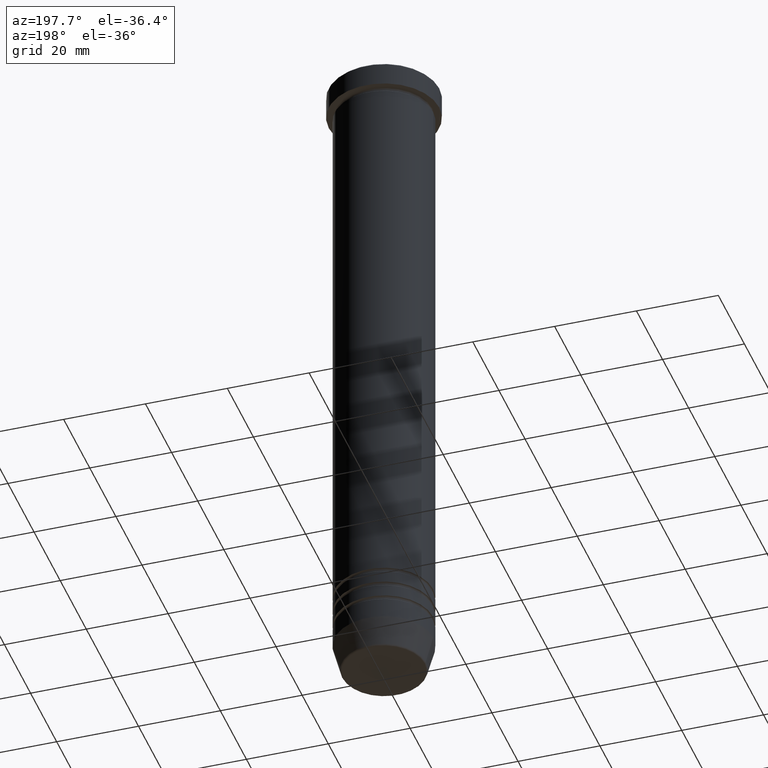
[diagram: clean part render]
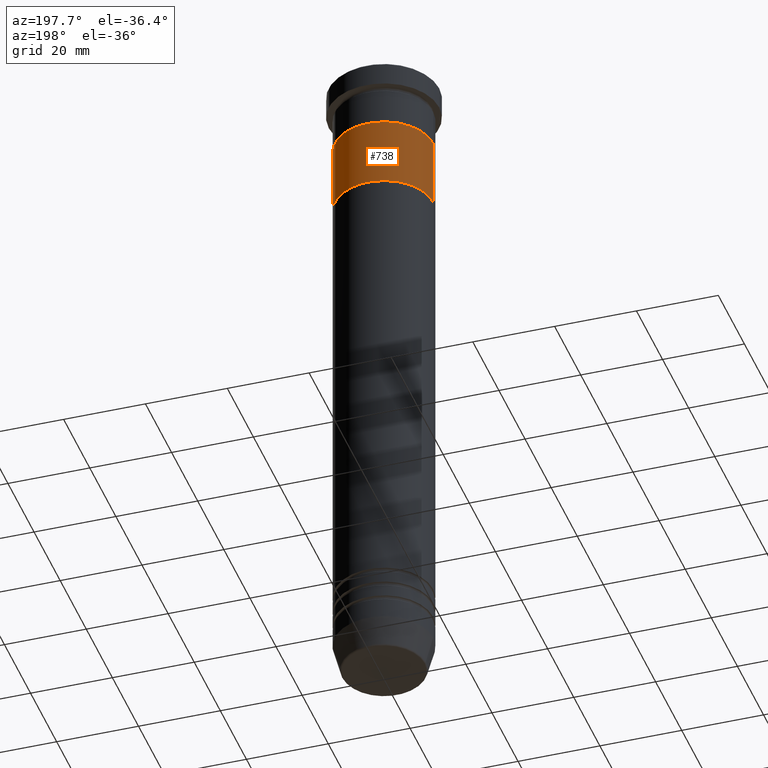
[diagram: same view with one face highlighted and labeled with its STEP entity id]
A machine part, auxiliary view. The second image highlights one B-rep face of the part: STEP entity #738.
In plain terms, the highlighted cylindrical surface (partial cylindrical patch) has radius 12 mm, axis along (-0, -0, 1).
Its self-contained STEP definition (entity closure, byte-faithful):
#30 = VERTEX_POINT ( 'NONE', #374 ) ;
#106 = LINE ( 'NONE', #473, #140 ) ;
#119 = CARTESIAN_POINT ( 'NONE',  ( -12.00000000000000178, 1.469576158976824144E-15, -33.00000000000000000 ) ) ;
#140 = VECTOR ( 'NONE', #287, 1000.000000000000000 ) ;
#145 = EDGE_LOOP ( 'NONE', ( #814, #496, #876, #226 ) ) ;
#160 = VERTEX_POINT ( 'NONE', #606 ) ;
#194 = CIRCLE ( 'NONE', #681, 12.00000000000000178 ) ;
#203 = DIRECTION ( 'NONE',  ( -0.000000000000000000, -0.000000000000000000, 1.000000000000000000 ) ) ;
#226 = ORIENTED_EDGE ( 'NONE', *, *, #744, .F. ) ;
#260 = DIRECTION ( 'NONE',  ( 0.000000000000000000, 0.000000000000000000, -1.000000000000000000 ) ) ;
#287 = DIRECTION ( 'NONE',  ( -0.000000000000000000, -0.000000000000000000, 1.000000000000000000 ) ) ;
#354 = DIRECTION ( 'NONE',  ( -1.000000000000000000, 0.000000000000000000, 0.000000000000000000 ) ) ;
#374 = CARTESIAN_POINT ( 'NONE',  ( -12.00000000000000178, 1.469576158976824144E-15, -16.00000000000000000 ) ) ;
#469 = EDGE_CURVE ( 'NONE', #951, #30, #905, .T. ) ;
#470 = VECTOR ( 'NONE', #757, 1000.000000000000000 ) ;
#473 = CARTESIAN_POINT ( 'NONE',  ( 12.00000000000000178, 0.000000000000000000, -33.00000000000000000 ) ) ;
#484 = FACE_OUTER_BOUND ( 'NONE', #145, .T. ) ;
#496 = ORIENTED_EDGE ( 'NONE', *, *, #469, .T. ) ;
#568 = DIRECTION ( 'NONE',  ( -1.000000000000000000, 0.000000000000000000, 0.000000000000000000 ) ) ;
#606 = CARTESIAN_POINT ( 'NONE',  ( 12.00000000000000178, 0.000000000000000000, -16.00000000000000000 ) ) ;
#621 = EDGE_CURVE ( 'NONE', #30, #160, #194, .T. ) ;
#640 = CARTESIAN_POINT ( 'NONE',  ( 0.000000000000000000, 0.000000000000000000, -33.00000000000000000 ) ) ;
#648 = CARTESIAN_POINT ( 'NONE',  ( 0.000000000000000000, 0.000000000000000000, -33.00000000000000000 ) ) ;
#655 = DIRECTION ( 'NONE',  ( 1.000000000000000000, 0.000000000000000000, 0.000000000000000000 ) ) ;
#681 = AXIS2_PLACEMENT_3D ( 'NONE', #1140, #260, #354 ) ;
#691 = VERTEX_POINT ( 'NONE', #1068 ) ;
#738 = ADVANCED_FACE ( 'NONE', ( #484 ), #742, .T. ) ;
#742 = CYLINDRICAL_SURFACE ( 'NONE', #1072, 12.00000000000000178 ) ;
#744 = EDGE_CURVE ( 'NONE', #691, #160, #106, .T. ) ;
#757 = DIRECTION ( 'NONE',  ( -0.000000000000000000, -0.000000000000000000, 1.000000000000000000 ) ) ;
#814 = ORIENTED_EDGE ( 'NONE', *, *, #1070, .F. ) ;
#845 = CARTESIAN_POINT ( 'NONE',  ( -12.00000000000000178, 1.469576158976824144E-15, -33.00000000000000000 ) ) ;
#876 = ORIENTED_EDGE ( 'NONE', *, *, #621, .T. ) ;
#905 = LINE ( 'NONE', #119, #470 ) ;
#908 = AXIS2_PLACEMENT_3D ( 'NONE', #640, #1058, #568 ) ;
#951 = VERTEX_POINT ( 'NONE', #845 ) ;
#1001 = CIRCLE ( 'NONE', #908, 12.00000000000000178 ) ;
#1058 = DIRECTION ( 'NONE',  ( 0.000000000000000000, 0.000000000000000000, -1.000000000000000000 ) ) ;
#1068 = CARTESIAN_POINT ( 'NONE',  ( 12.00000000000000178, 0.000000000000000000, -33.00000000000000000 ) ) ;
#1070 = EDGE_CURVE ( 'NONE', #951, #691, #1001, .T. ) ;
#1072 = AXIS2_PLACEMENT_3D ( 'NONE', #648, #203, #655 ) ;
#1140 = CARTESIAN_POINT ( 'NONE',  ( 0.000000000000000000, 0.000000000000000000, -16.00000000000000000 ) ) ;